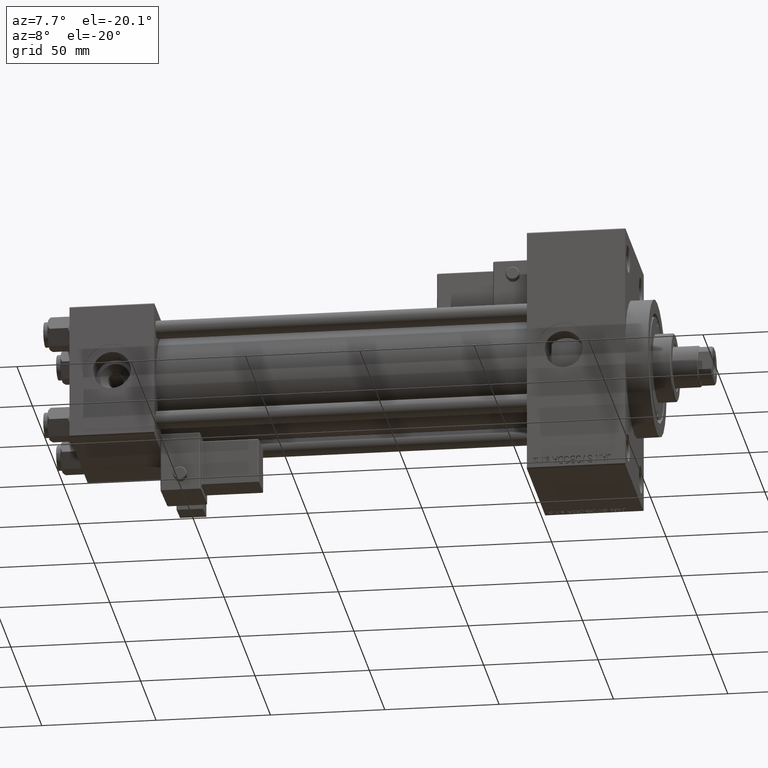
[diagram: clean part render]
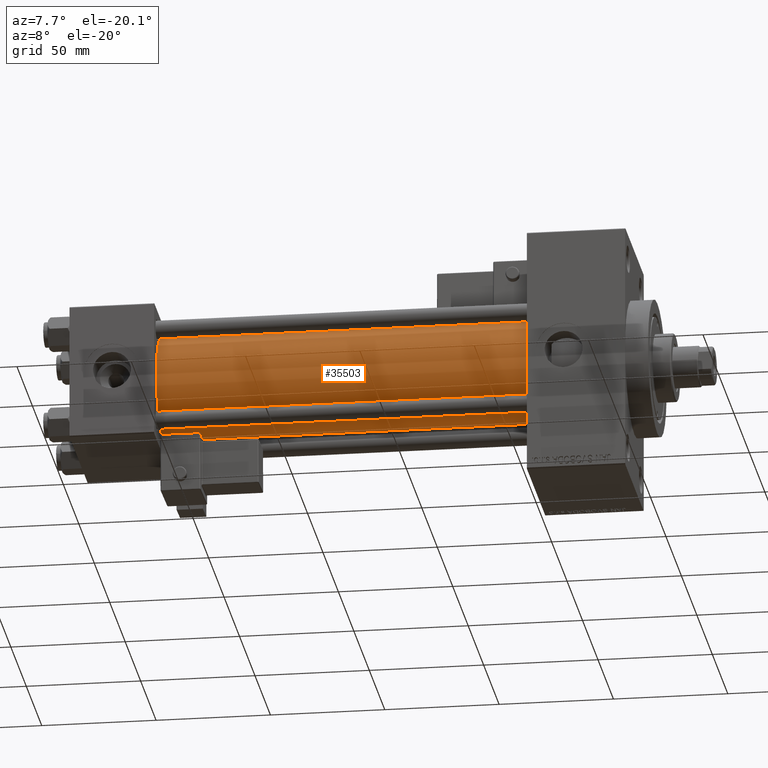
[diagram: same view with one face highlighted and labeled with its STEP entity id]
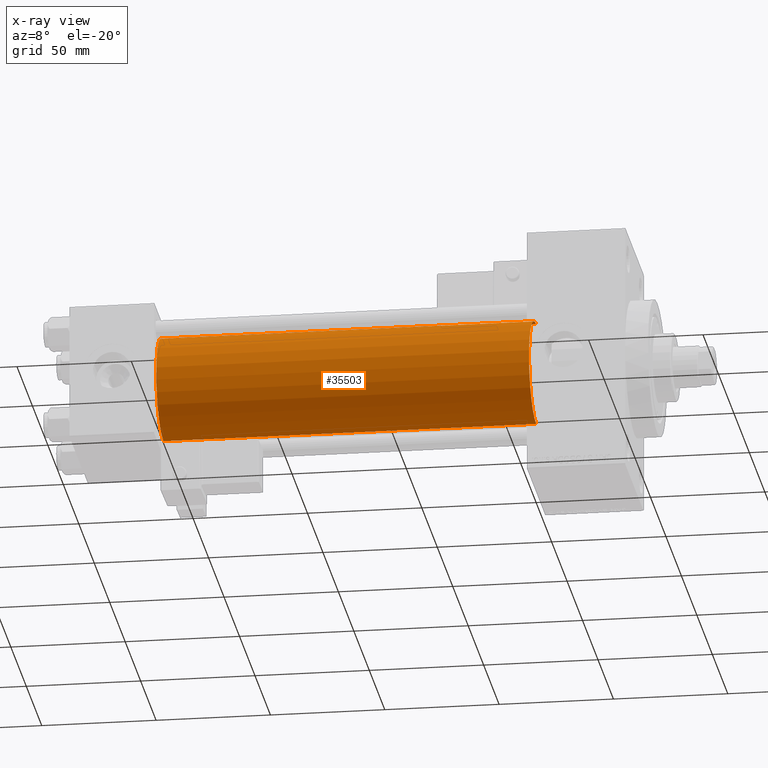
[diagram: x-ray of the same camera — body ghosted, the highlighted face saturated]
A machine part, auxiliary view. The second image highlights one B-rep face of the part: STEP entity #35503.
The next image is the same camera in x-ray: the body ghosted, the highlighted face saturated — about 0% of this face is hidden behind the body in this view.
In plain terms, the highlighted cylindrical surface (partial cylindrical patch) has radius 23 mm, axis along (-1, -0, -0).
Its self-contained STEP definition (entity closure, byte-faithful):
#356 = CARTESIAN_POINT ( 'NONE',  ( 37.00000000000000711, 2.146024240737016609E-16, -23.00000000000000000 ) ) ;
#1283 = VERTEX_POINT ( 'NONE', #356 ) ;
#1824 = AXIS2_PLACEMENT_3D ( 'NONE', #10319, #2471, #30700 ) ;
#2471 = DIRECTION ( 'NONE',  ( 1.000000000000000000, -0.000000000000000000, 0.000000000000000000 ) ) ;
#2671 = DIRECTION ( 'NONE',  ( -1.000000000000000000, -0.000000000000000000, -0.000000000000000000 ) ) ;
#3519 = EDGE_CURVE ( 'NONE', #46958, #1283, #46596, .T. ) ;
#4811 = CARTESIAN_POINT ( 'NONE',  ( 200.0000000000000000, 2.146024240737016609E-16, -23.00000000000000000 ) ) ;
#10319 = CARTESIAN_POINT ( 'NONE',  ( 37.00000000000000711, -2.602085213965210642E-15, 0.000000000000000000 ) ) ;
#10656 = CARTESIAN_POINT ( 'NONE',  ( 200.0000000000000000, -2.602085213965210642E-15, 23.00000000000000000 ) ) ;
#10777 = CARTESIAN_POINT ( 'NONE',  ( 200.0000000000000000, 2.146024240737016609E-16, -23.00000000000000000 ) ) ;
#11693 = VERTEX_POINT ( 'NONE', #39861 ) ;
#12683 = CIRCLE ( 'NONE', #1824, 23.00000000000000000 ) ;
#16664 = CIRCLE ( 'NONE', #34217, 23.00000000000000000 ) ;
#18728 = ORIENTED_EDGE ( 'NONE', *, *, #44774, .T. ) ;
#21005 = CARTESIAN_POINT ( 'NONE',  ( 200.0000000000000000, -2.602085213965210642E-15, 0.000000000000000000 ) ) ;
#22357 = ORIENTED_EDGE ( 'NONE', *, *, #46875, .T. ) ;
#24297 = VECTOR ( 'NONE', #42553, 1000.000000000000000 ) ;
#26581 = VECTOR ( 'NONE', #2671, 1000.000000000000000 ) ;
#27485 = CARTESIAN_POINT ( 'NONE',  ( 200.0000000000000000, -2.602085213965210642E-15, 0.000000000000000000 ) ) ;
#28524 = DIRECTION ( 'NONE',  ( -1.000000000000000000, -0.000000000000000000, -0.000000000000000000 ) ) ;
#30600 = CARTESIAN_POINT ( 'NONE',  ( 200.0000000000000000, -2.602085213965210642E-15, 23.00000000000000000 ) ) ;
#30700 = DIRECTION ( 'NONE',  ( 0.000000000000000000, 0.000000000000000000, 1.000000000000000000 ) ) ;
#31664 = FACE_OUTER_BOUND ( 'NONE', #46649, .T. ) ;
#32781 = DIRECTION ( 'NONE',  ( 1.000000000000000000, 0.000000000000000000, 0.000000000000000000 ) ) ;
#34217 = AXIS2_PLACEMENT_3D ( 'NONE', #21005, #32781, #36959 ) ;
#35503 = ADVANCED_FACE ( 'NONE', ( #31664 ), #44471, .T. ) ;
#36959 = DIRECTION ( 'NONE',  ( 0.000000000000000000, 0.000000000000000000, -1.000000000000000000 ) ) ;
#39861 = CARTESIAN_POINT ( 'NONE',  ( 37.00000000000000711, -2.602085213965210642E-15, 23.00000000000000000 ) ) ;
#40948 = ORIENTED_EDGE ( 'NONE', *, *, #3519, .F. ) ;
#41639 = EDGE_CURVE ( 'NONE', #42088, #46958, #16664, .T. ) ;
#42088 = VERTEX_POINT ( 'NONE', #30600 ) ;
#42286 = LINE ( 'NONE', #10656, #24297 ) ;
#42553 = DIRECTION ( 'NONE',  ( -1.000000000000000000, -0.000000000000000000, -0.000000000000000000 ) ) ;
#44471 = CYLINDRICAL_SURFACE ( 'NONE', #45792, 23.00000000000000000 ) ;
#44774 = EDGE_CURVE ( 'NONE', #42088, #11693, #42286, .T. ) ;
#45792 = AXIS2_PLACEMENT_3D ( 'NONE', #27485, #28524, #48127 ) ;
#46596 = LINE ( 'NONE', #10777, #26581 ) ;
#46649 = EDGE_LOOP ( 'NONE', ( #40948, #51039, #18728, #22357 ) ) ;
#46875 = EDGE_CURVE ( 'NONE', #11693, #1283, #12683, .T. ) ;
#46958 = VERTEX_POINT ( 'NONE', #4811 ) ;
#48127 = DIRECTION ( 'NONE',  ( 0.000000000000000000, 0.000000000000000000, 1.000000000000000000 ) ) ;
#51039 = ORIENTED_EDGE ( 'NONE', *, *, #41639, .F. ) ;